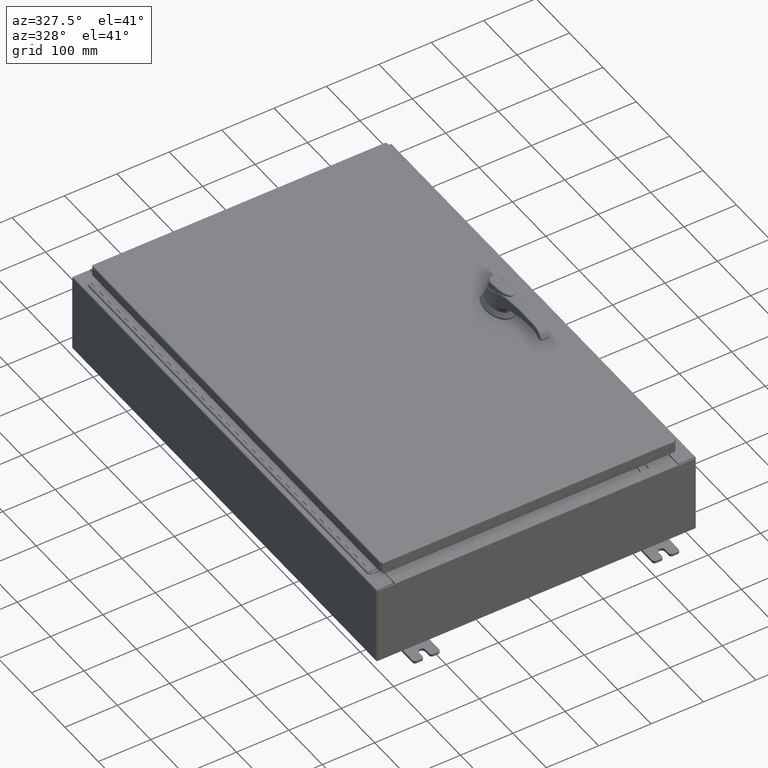
[diagram: clean part render]
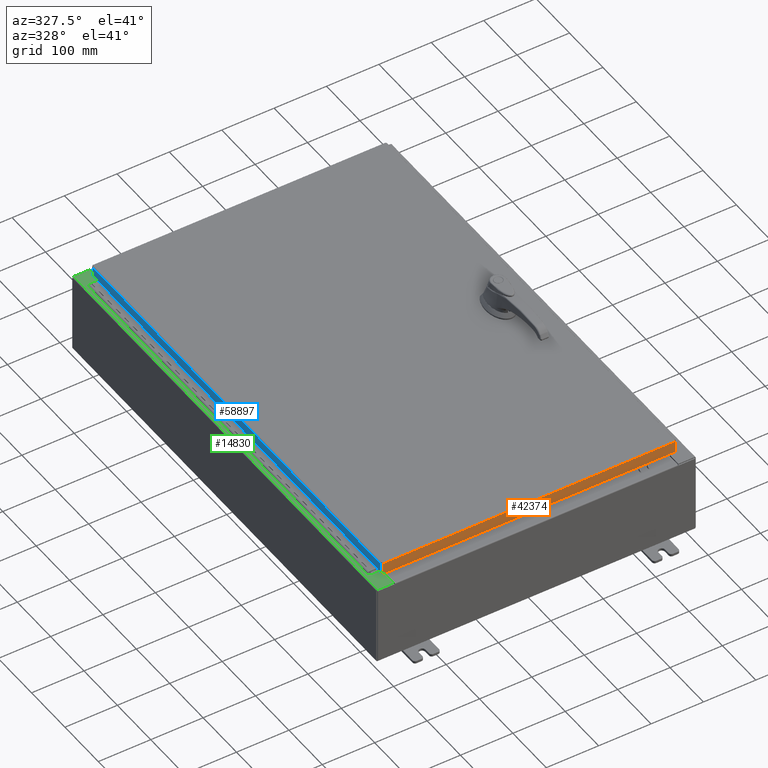
[diagram: same view with three faces highlighted in distinct colors, each labeled with its STEP entity id]
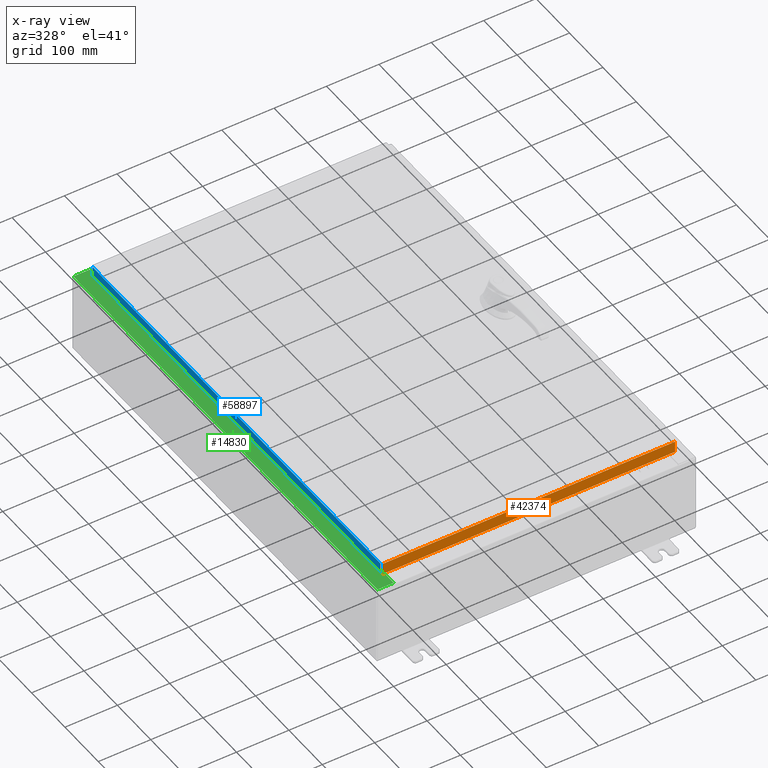
[diagram: x-ray of the same camera — body ghosted, the three highlighted faces saturated]
A machine part, auxiliary view with three faces highlighted in distinct colors.
The next image is the same camera in x-ray (body ghosted, the three faces saturated) — at least one of them is partly hidden behind the body in this view.
Their STEP definitions:

[orange] entity #42374 — the highlighted planar face has unit normal (-0, 1, -0).
#1359 = VECTOR ( 'NONE', #7370, 39.37007874015748100 ) ;
#4259 = FACE_OUTER_BOUND ( 'NONE', #43357, .T. ) ;
#7370 = DIRECTION ( 'NONE',  ( 1.000000000000000000, 3.122488847327593500E-031, -7.817847125977043000E-046 ) ) ;
#10633 = CARTESIAN_POINT ( 'NONE',  ( 10.98915786437626500, -17.09399999999999800, -0.07469999999999980800 ) ) ;
#16319 = VECTOR ( 'NONE', #50105, 39.37007874015748100 ) ;
#20872 = ORIENTED_EDGE ( 'NONE', *, *, #26945, .F. ) ;
#24698 = CARTESIAN_POINT ( 'NONE',  ( 5.337582435621786900E-030, -17.09399999999999800, 4.354999984715587200E-014 ) ) ;
#26846 = LINE ( 'NONE', #121320, #1359 ) ;
#26945 = EDGE_CURVE ( 'NONE', #36357, #109329, #26846, .T. ) ;
#31183 = CARTESIAN_POINT ( 'NONE',  ( 10.98915786437626700, -17.09399999999999800, -0.08770000000000008300 ) ) ;
#34324 = DIRECTION ( 'NONE',  ( 0.0000000000000000000, 2.532419924601866100E-015, 1.000000000000000000 ) ) ;
#35708 = ORIENTED_EDGE ( 'NONE', *, *, #70091, .F. ) ;
#36357 = VERTEX_POINT ( 'NONE', #52002 ) ;
#42374 = ADVANCED_FACE ( 'NONE', ( #4259 ), #81368, .F. ) ;
#43357 = EDGE_LOOP ( 'NONE', ( #20872, #122101, #35708, #110083 ) ) ;
#43390 = VECTOR ( 'NONE', #77431, 39.37007874015748100 ) ;
#48224 = LINE ( 'NONE', #71079, #120812 ) ;
#50105 = DIRECTION ( 'NONE',  ( 0.0000000000000000000, -2.532419924601866100E-015, -1.000000000000000000 ) ) ;
#52002 = CARTESIAN_POINT ( 'NONE',  ( -10.98915786437627200, -17.09399999999999800, -0.08770000000000008300 ) ) ;
#70091 = EDGE_CURVE ( 'NONE', #86972, #105867, #48224, .T. ) ;
#70130 = LINE ( 'NONE', #106868, #16319 ) ;
#71079 = CARTESIAN_POINT ( 'NONE',  ( 11.07799999999999600, -17.09399999999999800, -0.9376999999999997600 ) ) ;
#71700 = LINE ( 'NONE', #10633, #43390 ) ;
#77431 = DIRECTION ( 'NONE',  ( -0.0000000000000000000, -2.532419924601866100E-015, -1.000000000000000000 ) ) ;
#81114 = EDGE_CURVE ( 'NONE', #109329, #86972, #71700, .T. ) ;
#81368 = PLANE ( 'NONE',  #117221 ) ;
#86972 = VERTEX_POINT ( 'NONE', #104107 ) ;
#89285 = CARTESIAN_POINT ( 'NONE',  ( -10.98915786437627200, -17.09399999999999800, -0.9376999999999970900 ) ) ;
#91286 = DIRECTION ( 'NONE',  ( -3.122488847327593000E-031, 1.000000000000000000, -2.532419924601866100E-015 ) ) ;
#99560 = DIRECTION ( 'NONE',  ( -1.000000000000000000, -0.0000000000000000000, 1.233005954894504400E-016 ) ) ;
#104107 = CARTESIAN_POINT ( 'NONE',  ( 10.98915786437626500, -17.09399999999999800, -0.9376999999999997600 ) ) ;
#105867 = VERTEX_POINT ( 'NONE', #89285 ) ;
#106868 = CARTESIAN_POINT ( 'NONE',  ( -10.98915786437626900, -17.09399999999999800, 4.354999984715587200E-014 ) ) ;
#109299 = EDGE_CURVE ( 'NONE', #36357, #105867, #70130, .T. ) ;
#109329 = VERTEX_POINT ( 'NONE', #31183 ) ;
#110083 = ORIENTED_EDGE ( 'NONE', *, *, #81114, .F. ) ;
#117221 = AXIS2_PLACEMENT_3D ( 'NONE', #24698, #91286, #34324 ) ;
#120812 = VECTOR ( 'NONE', #99560, 39.37007874015748100 ) ;
#121320 = CARTESIAN_POINT ( 'NONE',  ( 11.07799999999999600, -17.09399999999999800, -0.08770000000000008300 ) ) ;
#122101 = ORIENTED_EDGE ( 'NONE', *, *, #109299, .T. ) ;

[blue] entity #58897 — the highlighted planar face has unit normal (1, 0, -0).
#1482 = VECTOR ( 'NONE', #110820, 39.37007874015748100 ) ;
#5583 = LINE ( 'NONE', #25319, #50561 ) ;
#10939 = DIRECTION ( 'NONE',  ( -6.392530697705073700E-017, 1.000000000000000000, 1.238552822680358100E-016 ) ) ;
#11442 = LINE ( 'NONE', #81438, #84560 ) ;
#18686 = LINE ( 'NONE', #58674, #41226 ) ;
#25319 = CARTESIAN_POINT ( 'NONE',  ( -11.07800000000000300, -17.09399999999999800, -0.08770000000000004200 ) ) ;
#26218 = EDGE_CURVE ( 'NONE', #104585, #41171, #26963, .T. ) ;
#26963 = LINE ( 'NONE', #82232, #1482 ) ;
#40185 = AXIS2_PLACEMENT_3D ( 'NONE', #73837, #121315, #64673 ) ;
#41171 = VERTEX_POINT ( 'NONE', #49471 ) ;
#41226 = VECTOR ( 'NONE', #10939, 39.37007874015748100 ) ;
#47172 = VERTEX_POINT ( 'NONE', #53620 ) ;
#47238 = ORIENTED_EDGE ( 'NONE', *, *, #103001, .F. ) ;
#49471 = CARTESIAN_POINT ( 'NONE',  ( -11.07800000000000500, 17.00515786437628000, -0.7949999999999954900 ) ) ;
#50561 = VECTOR ( 'NONE', #101422, 39.37007874015748100 ) ;
#52843 = CARTESIAN_POINT ( 'NONE',  ( -11.07800000000000500, 17.00515786437627600, -0.08770000000000223500 ) ) ;
#53620 = CARTESIAN_POINT ( 'NONE',  ( -11.07800000000000300, -17.00515786437626200, -0.08770000000000115200 ) ) ;
#58674 = CARTESIAN_POINT ( 'NONE',  ( -11.07800000000000500, -17.09399999999999800, -0.7949999999999997100 ) ) ;
#58897 = ADVANCED_FACE ( 'NONE', ( #64092 ), #111868, .F. ) ;
#64092 = FACE_OUTER_BOUND ( 'NONE', #69936, .T. ) ;
#64673 = DIRECTION ( 'NONE',  ( -3.034122441942816500E-015, 0.0000000000000000000, -1.000000000000000000 ) ) ;
#67520 = ORIENTED_EDGE ( 'NONE', *, *, #92555, .F. ) ;
#69936 = EDGE_LOOP ( 'NONE', ( #67520, #73802, #47238, #70111 ) ) ;
#70111 = ORIENTED_EDGE ( 'NONE', *, *, #93096, .F. ) ;
#73802 = ORIENTED_EDGE ( 'NONE', *, *, #26218, .T. ) ;
#73837 = CARTESIAN_POINT ( 'NONE',  ( -11.07800000000000300, -7.081645506917722700E-016, 3.387282206785411200E-014 ) ) ;
#81438 = CARTESIAN_POINT ( 'NONE',  ( -11.07800000000000300, -17.00515786437626500, -0.07469999999999976700 ) ) ;
#82232 = CARTESIAN_POINT ( 'NONE',  ( -11.07800000000000300, 17.00515786437627600, 1.526192047629567600E-013 ) ) ;
#84560 = VECTOR ( 'NONE', #119040, 39.37007874015748100 ) ;
#92555 = EDGE_CURVE ( 'NONE', #104585, #47172, #5583, .T. ) ;
#93096 = EDGE_CURVE ( 'NONE', #47172, #101266, #11442, .T. ) ;
#101266 = VERTEX_POINT ( 'NONE', #108347 ) ;
#101422 = DIRECTION ( 'NONE',  ( 6.392530697705130400E-017, -1.000000000000000000, 6.392530697705074900E-017 ) ) ;
#103001 = EDGE_CURVE ( 'NONE', #101266, #41171, #18686, .T. ) ;
#104585 = VERTEX_POINT ( 'NONE', #52843 ) ;
#108347 = CARTESIAN_POINT ( 'NONE',  ( -11.07800000000000500, -17.00515786437626200, -0.7949999999999996000 ) ) ;
#110820 = DIRECTION ( 'NONE',  ( -3.034122441942816500E-015, 6.982962677686265900E-015, -1.000000000000000000 ) ) ;
#111868 = PLANE ( 'NONE',  #40185 ) ;
#119040 = DIRECTION ( 'NONE',  ( -3.034122441942816500E-015, 6.982962677686265900E-015, -1.000000000000000000 ) ) ;
#121315 = DIRECTION ( 'NONE',  ( 1.000000000000000000, 6.392530697705110700E-017, -3.034122441942816500E-015 ) ) ;

[green] entity #14830 — the highlighted planar face has unit normal (0, 0, -1).
#1845 = CARTESIAN_POINT ( 'NONE',  ( -4.252457061909017700E-014, -17.92530000000000400, 5.925300000000084400 ) ) ;
#2391 = VERTEX_POINT ( 'NONE', #5375 ) ;
#2771 = CARTESIAN_POINT ( 'NONE',  ( -10.69970000000002100, 16.63110000000000000, 5.925300000000008000 ) ) ;
#3631 = ORIENTED_EDGE ( 'NONE', *, *, #36855, .F. ) ;
#4235 = DIRECTION ( 'NONE',  ( -2.076025640262915200E-031, 1.000000000000000000, -1.480779759829717100E-045 ) ) ;
#5375 = CARTESIAN_POINT ( 'NONE',  ( -10.69970000000002100, -17.92530000000000400, 5.925300000000008000 ) ) ;
#7675 = CARTESIAN_POINT ( 'NONE',  ( -10.69970000000002100, -2.221285154312107200E-030, 5.925300000000008000 ) ) ;
#7909 = CIRCLE ( 'NONE', #92017, 0.01867499999999949400 ) ;
#10125 = CARTESIAN_POINT ( 'NONE',  ( -4.252457061909017700E-014, 0.0000000000000000000, 5.925300000000084400 ) ) ;
#10756 = EDGE_CURVE ( 'NONE', #117598, #2391, #68921, .T. ) ;
#11480 = LINE ( 'NONE', #64475, #109841 ) ;
#14564 = VERTEX_POINT ( 'NONE', #16114 ) ;
#14669 = VECTOR ( 'NONE', #32966, 39.37007874015748100 ) ;
#14830 = ADVANCED_FACE ( 'NONE', ( #116269 ), #67383, .F. ) ;
#16114 = CARTESIAN_POINT ( 'NONE',  ( -10.75005000000002100, -16.59375000000000400, 5.925300000000008000 ) ) ;
#17574 = EDGE_LOOP ( 'NONE', ( #39403, #71101, #62035, #29101, #66789, #24593, #70830, #87543, #3631, #76691, #111406, #45656 ) ) ;
#20917 = CARTESIAN_POINT ( 'NONE',  ( -10.69970000000002100, 16.63110000000000000, 5.925300000000008900 ) ) ;
#21503 = DIRECTION ( 'NONE',  ( 7.132762385546384700E-015, 0.0000000000000000000, -1.000000000000000000 ) ) ;
#21913 = VERTEX_POINT ( 'NONE', #75970 ) ;
#22207 = DIRECTION ( 'NONE',  ( -0.0000000000000000000, -1.000000000000000000, -0.0000000000000000000 ) ) ;
#24593 = ORIENTED_EDGE ( 'NONE', *, *, #43362, .T. ) ;
#24697 = CARTESIAN_POINT ( 'NONE',  ( -10.75005000000002100, -16.63110000000000400, 5.925300000000008000 ) ) ;
#29101 = ORIENTED_EDGE ( 'NONE', *, *, #106888, .F. ) ;
#32966 = DIRECTION ( 'NONE',  ( -1.000000000000000000, 0.0000000000000000000, 0.0000000000000000000 ) ) ;
#36401 = VECTOR ( 'NONE', #120747, 39.37007874015748100 ) ;
#36855 = EDGE_CURVE ( 'NONE', #78817, #14564, #121732, .T. ) ;
#39403 = ORIENTED_EDGE ( 'NONE', *, *, #53134, .F. ) ;
#41102 = CARTESIAN_POINT ( 'NONE',  ( -10.71270000000002100, 16.59375000000000000, 5.925300000000009800 ) ) ;
#41292 = EDGE_CURVE ( 'NONE', #102836, #78817, #101336, .T. ) ;
#41810 = CARTESIAN_POINT ( 'NONE',  ( -10.69970000000002100, 17.92529999999999600, 5.925300000000008000 ) ) ;
#42580 = DIRECTION ( 'NONE',  ( -7.132762385546384700E-015, -0.0000000000000000000, 1.000000000000000000 ) ) ;
#43362 = EDGE_CURVE ( 'NONE', #2391, #21913, #80318, .T. ) ;
#43439 = CARTESIAN_POINT ( 'NONE',  ( -10.75005000000002100, 16.63110000000000000, 5.925300000000008000 ) ) ;
#43520 = EDGE_CURVE ( 'NONE', #49829, #102836, #96515, .T. ) ;
#43674 = VECTOR ( 'NONE', #108993, 39.37007874015748100 ) ;
#45656 = ORIENTED_EDGE ( 'NONE', *, *, #75026, .F. ) ;
#47496 = DIRECTION ( 'NONE',  ( 1.000000000000000000, 0.0000000000000000000, 0.0000000000000000000 ) ) ;
#49829 = VERTEX_POINT ( 'NONE', #51410 ) ;
#50054 = DIRECTION ( 'NONE',  ( -7.132762385546384700E-015, -0.0000000000000000000, 1.000000000000000000 ) ) ;
#51410 = CARTESIAN_POINT ( 'NONE',  ( -10.75005000000002100, 16.59375000000000000, 5.925300000000008000 ) ) ;
#52132 = CARTESIAN_POINT ( 'NONE',  ( -10.71270000000002100, 16.59375000000000000, 5.925300000000009800 ) ) ;
#53134 = EDGE_CURVE ( 'NONE', #58782, #62666, #88864, .T. ) ;
#55098 = VECTOR ( 'NONE', #93516, 39.37007874015748100 ) ;
#55576 = VECTOR ( 'NONE', #56327, 39.37007874015748100 ) ;
#56327 = DIRECTION ( 'NONE',  ( -0.0000000000000000000, 1.000000000000000000, -0.0000000000000000000 ) ) ;
#56485 = CARTESIAN_POINT ( 'NONE',  ( -11.91230000000002000, 17.92529999999999600, 5.925299999999999100 ) ) ;
#58782 = VERTEX_POINT ( 'NONE', #2771 ) ;
#59777 = CARTESIAN_POINT ( 'NONE',  ( -10.71270000000002100, -16.59375000000000400, 5.925300000000009800 ) ) ;
#60441 = EDGE_CURVE ( 'NONE', #100066, #21913, #11480, .T. ) ;
#61663 = CARTESIAN_POINT ( 'NONE',  ( -11.91230000000002000, -17.92530000000000400, 5.925299999999999100 ) ) ;
#62035 = ORIENTED_EDGE ( 'NONE', *, *, #99196, .T. ) ;
#62666 = VERTEX_POINT ( 'NONE', #43439 ) ;
#62700 = AXIS2_PLACEMENT_3D ( 'NONE', #10125, #21503, #88116 ) ;
#64475 = CARTESIAN_POINT ( 'NONE',  ( -10.75005000000002100, -16.63110000000000400, 5.925300000000009800 ) ) ;
#66789 = ORIENTED_EDGE ( 'NONE', *, *, #10756, .T. ) ;
#67383 = PLANE ( 'NONE',  #62700 ) ;
#67623 = LINE ( 'NONE', #118221, #115007 ) ;
#68041 = CIRCLE ( 'NONE', #98887, 0.01867499999999949400 ) ;
#68921 = LINE ( 'NONE', #1845, #43674 ) ;
#68958 = DIRECTION ( 'NONE',  ( -1.000000000000000000, -4.340572780400098900E-014, 2.170286390200049500E-014 ) ) ;
#70830 = ORIENTED_EDGE ( 'NONE', *, *, #60441, .F. ) ;
#71101 = ORIENTED_EDGE ( 'NONE', *, *, #75823, .T. ) ;
#74047 = DIRECTION ( 'NONE',  ( 1.000000000000000000, -4.340572780400098900E-014, -2.170286390200049500E-014 ) ) ;
#75026 = EDGE_CURVE ( 'NONE', #62666, #49829, #7909, .T. ) ;
#75823 = EDGE_CURVE ( 'NONE', #58782, #101944, #67623, .T. ) ;
#75970 = CARTESIAN_POINT ( 'NONE',  ( -10.69970000000002100, -16.63110000000000700, 5.925300000000008000 ) ) ;
#76691 = ORIENTED_EDGE ( 'NONE', *, *, #41292, .F. ) ;
#78817 = VERTEX_POINT ( 'NONE', #59777 ) ;
#80318 = LINE ( 'NONE', #7675, #55098 ) ;
#80822 = LINE ( 'NONE', #103565, #55576 ) ;
#85190 = CARTESIAN_POINT ( 'NONE',  ( -10.75005000000002100, 16.59375000000000000, 5.925300000000009800 ) ) ;
#87543 = ORIENTED_EDGE ( 'NONE', *, *, #102570, .F. ) ;
#88116 = DIRECTION ( 'NONE',  ( -1.000000000000000000, 0.0000000000000000000, -7.132762385546384700E-015 ) ) ;
#88864 = LINE ( 'NONE', #20917, #114033 ) ;
#92017 = AXIS2_PLACEMENT_3D ( 'NONE', #99370, #42580, #108935 ) ;
#93516 = DIRECTION ( 'NONE',  ( -2.076025640262915200E-031, 1.000000000000000000, -1.480779759829717100E-045 ) ) ;
#94953 = VERTEX_POINT ( 'NONE', #56485 ) ;
#96515 = LINE ( 'NONE', #85190, #118736 ) ;
#96948 = CARTESIAN_POINT ( 'NONE',  ( -10.71270000000002100, -16.59375000000000400, 5.925300000000009800 ) ) ;
#98321 = VECTOR ( 'NONE', #22207, 39.37007874015748100 ) ;
#98887 = AXIS2_PLACEMENT_3D ( 'NONE', #106828, #50054, #116262 ) ;
#99196 = EDGE_CURVE ( 'NONE', #101944, #94953, #115085, .T. ) ;
#99370 = CARTESIAN_POINT ( 'NONE',  ( -10.75005000000002100, 16.61242499999999800, 5.925300000000009800 ) ) ;
#100066 = VERTEX_POINT ( 'NONE', #24697 ) ;
#101336 = LINE ( 'NONE', #41102, #98321 ) ;
#101944 = VERTEX_POINT ( 'NONE', #41810 ) ;
#102570 = EDGE_CURVE ( 'NONE', #14564, #100066, #68041, .T. ) ;
#102836 = VERTEX_POINT ( 'NONE', #52132 ) ;
#103565 = CARTESIAN_POINT ( 'NONE',  ( -11.91230000000002000, 17.92529999999999600, 5.925299999999999100 ) ) ;
#106828 = CARTESIAN_POINT ( 'NONE',  ( -10.75005000000002100, -16.61242500000000200, 5.925300000000009800 ) ) ;
#106888 = EDGE_CURVE ( 'NONE', #117598, #94953, #80822, .T. ) ;
#108935 = DIRECTION ( 'NONE',  ( 1.000000000000000000, 0.0000000000000000000, 0.0000000000000000000 ) ) ;
#108993 = DIRECTION ( 'NONE',  ( 1.000000000000000000, -4.379057701015054300E-047, 7.132762385546384700E-015 ) ) ;
#109841 = VECTOR ( 'NONE', #74047, 39.37007874015748100 ) ;
#111315 = CARTESIAN_POINT ( 'NONE',  ( -4.252457061909017700E-014, 17.92529999999999600, 5.925300000000084400 ) ) ;
#111406 = ORIENTED_EDGE ( 'NONE', *, *, #43520, .F. ) ;
#114033 = VECTOR ( 'NONE', #68958, 39.37007874015748100 ) ;
#115007 = VECTOR ( 'NONE', #4235, 39.37007874015748100 ) ;
#115085 = LINE ( 'NONE', #111315, #36401 ) ;
#116262 = DIRECTION ( 'NONE',  ( 1.000000000000000000, 0.0000000000000000000, 0.0000000000000000000 ) ) ;
#116269 = FACE_OUTER_BOUND ( 'NONE', #17574, .T. ) ;
#117598 = VERTEX_POINT ( 'NONE', #61663 ) ;
#118221 = CARTESIAN_POINT ( 'NONE',  ( -10.69970000000002100, -2.221285154312107200E-030, 5.925300000000008000 ) ) ;
#118736 = VECTOR ( 'NONE', #47496, 39.37007874015748100 ) ;
#120747 = DIRECTION ( 'NONE',  ( -1.000000000000000000, -2.717614574405841100E-032, -7.132762385546384700E-015 ) ) ;
#121732 = LINE ( 'NONE', #96948, #14669 ) ;